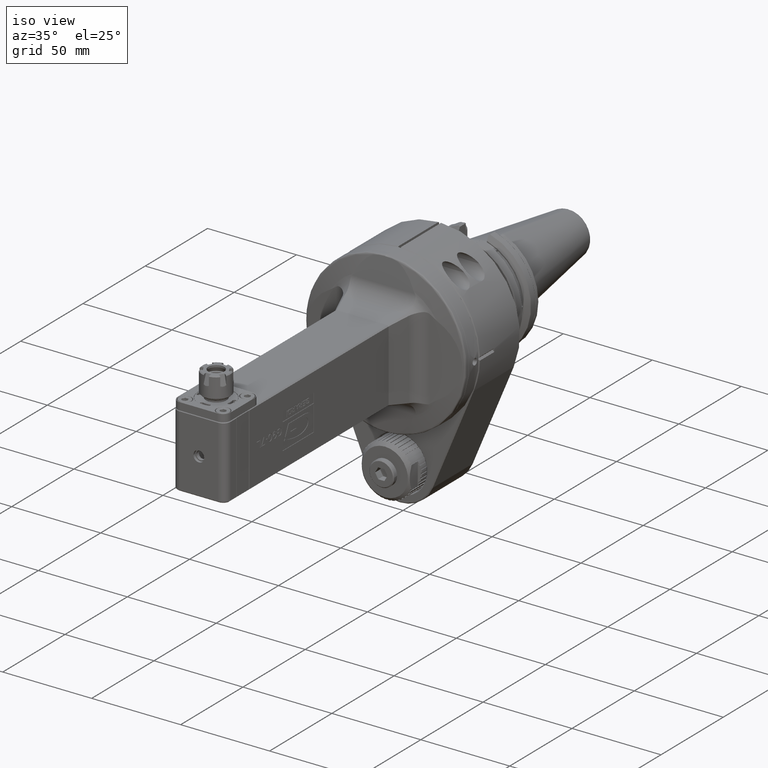
[diagram: clean part render]
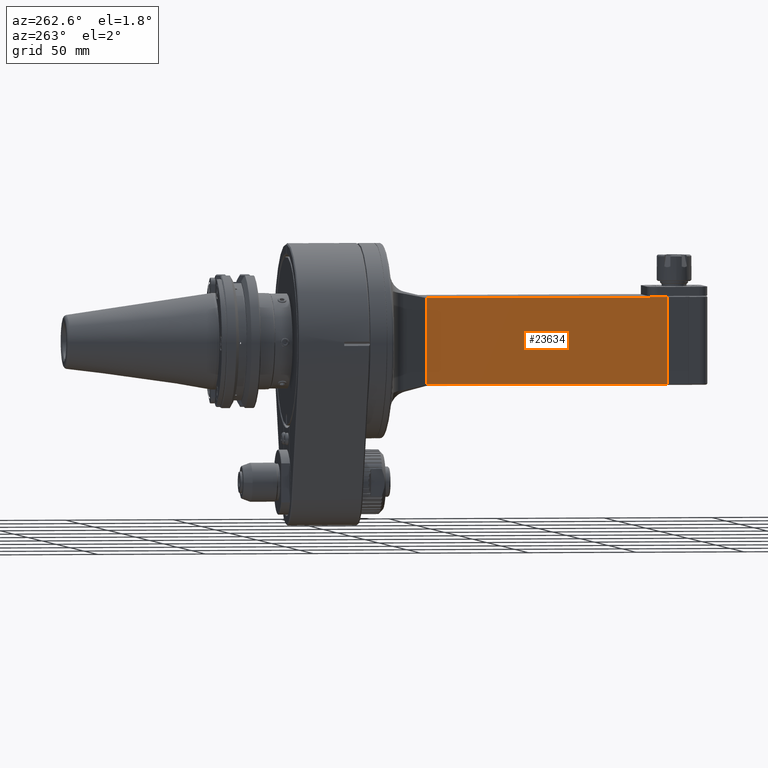
[diagram: tour spotlight — one face highlighted and labeled with its STEP entity id]
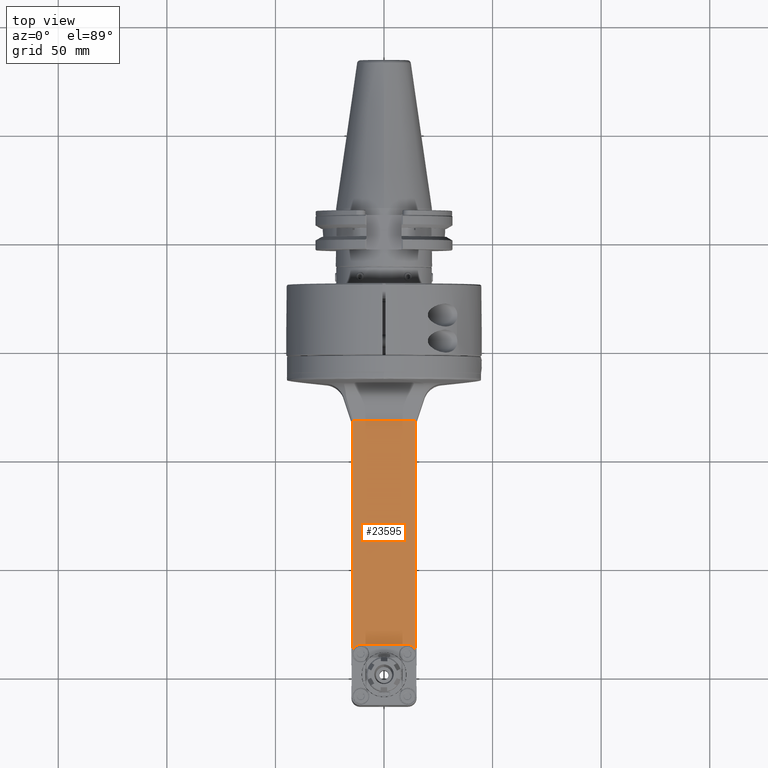
[diagram: tour spotlight — one face highlighted and labeled with its STEP entity id]
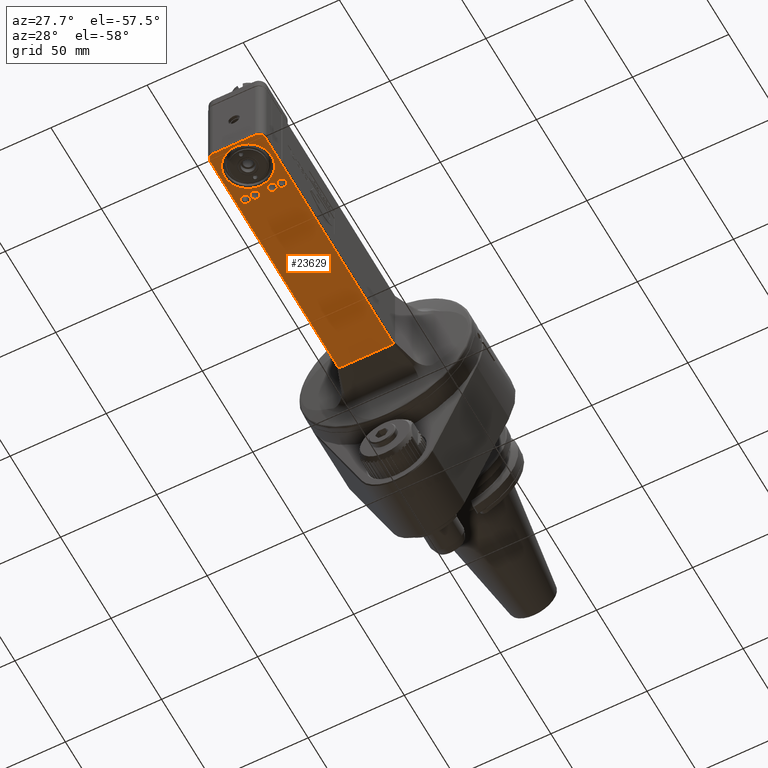
[diagram: tour spotlight — one face highlighted and labeled with its STEP entity id]
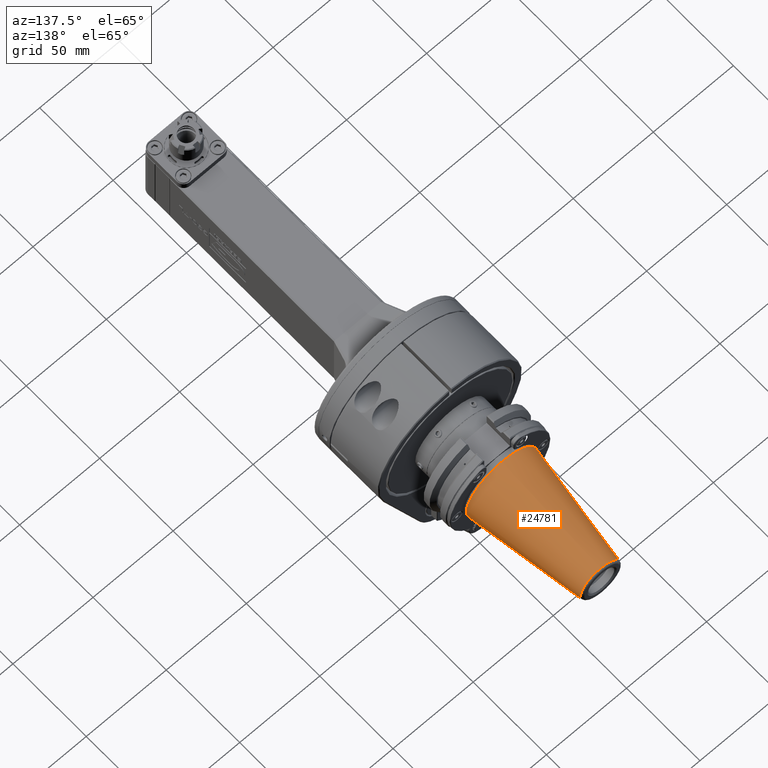
[diagram: tour spotlight — one face highlighted and labeled with its STEP entity id]
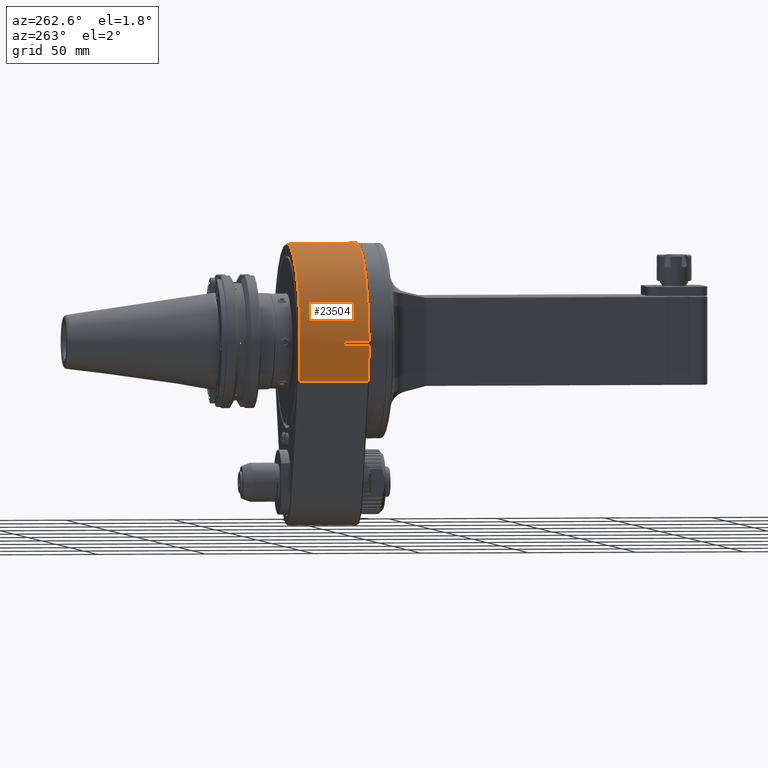
[diagram: tour spotlight — one face highlighted and labeled with its STEP entity id]
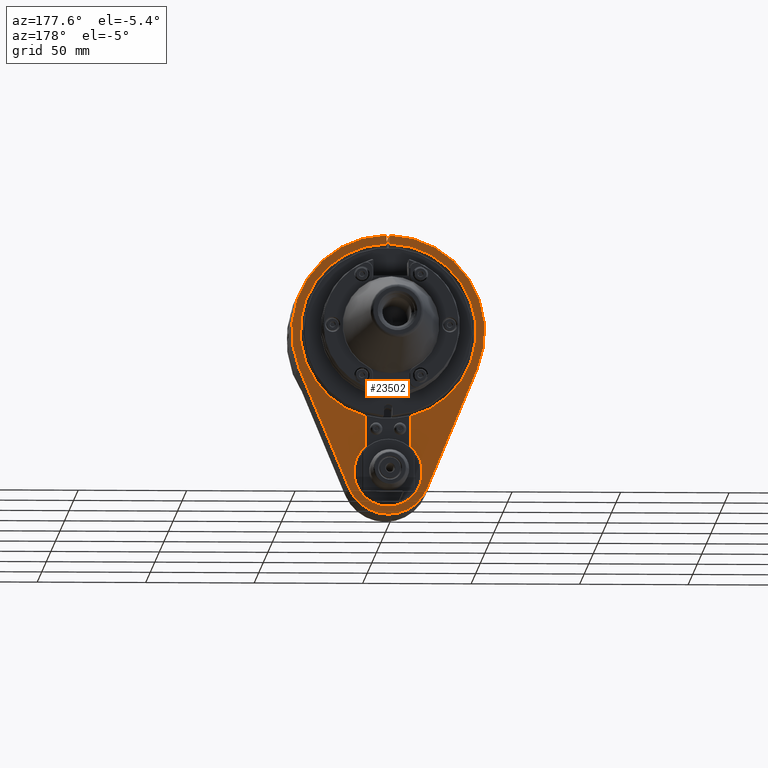
[diagram: tour spotlight — one face highlighted and labeled with its STEP entity id]
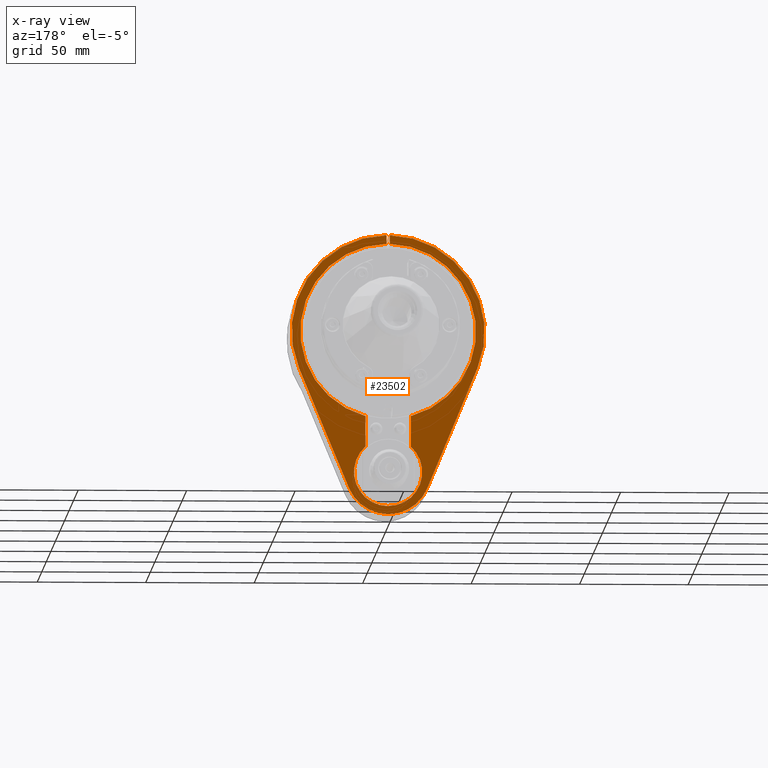
[diagram: x-ray of the same camera — body ghosted, this tour face saturated]
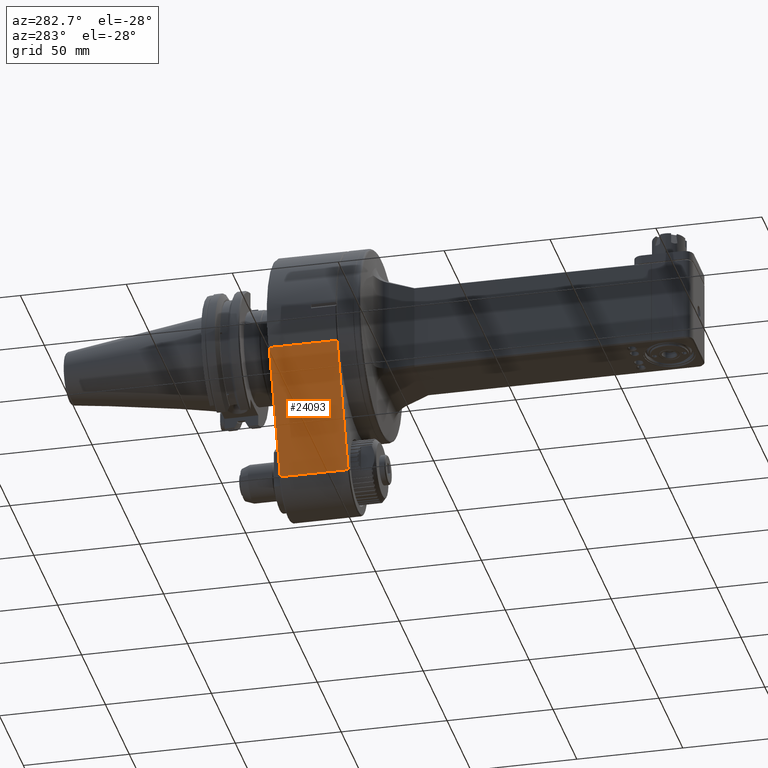
[diagram: tour spotlight — one face highlighted and labeled with its STEP entity id]
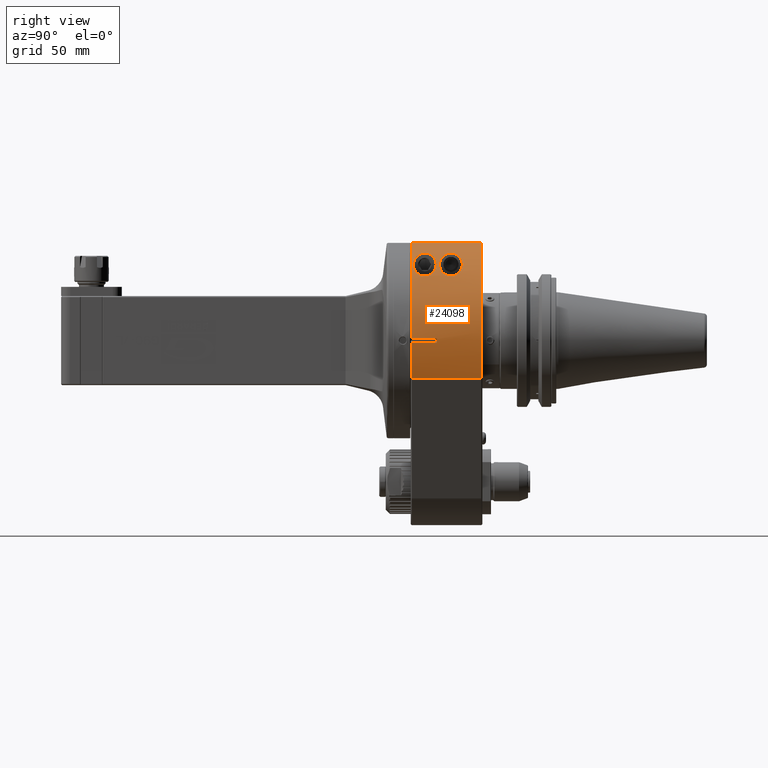
[diagram: tour spotlight — one face highlighted and labeled with its STEP entity id]
A machine part: a face-by-face anatomy tour. The part has 1410 B-rep faces; the first image is the clean iso view, then the 8 largest visible faces are spotlighted one at a time (largest first), each with its STEP entity span.

Face 1 — auxiliary view, entity #23634. In plain terms, the highlighted planar face has unit normal (1, 0, 0).
Definition (entity closure, byte-faithful):
#1033=LINE('',#38626,#3162);
#1038=LINE('',#38649,#3167);
#1039=LINE('',#38651,#3168);
#1040=LINE('',#38652,#3169);
#3162=VECTOR('',#28645,111.8);
#3167=VECTOR('',#28658,40.);
#3168=VECTOR('',#28661,111.8);
#3169=VECTOR('',#28662,40.);
#5694=FACE_OUTER_BOUND('',#7150,.T.);
#7150=EDGE_LOOP('',(#16610,#16611,#16612,#16613));
#9876=VERTEX_POINT('',#37221);
#9886=VERTEX_POINT('',#37592);
#9934=VERTEX_POINT('',#38624);
#9940=VERTEX_POINT('',#38647);
#12479=EDGE_CURVE('',#9886,#9934,#1033,.T.);
#12488=EDGE_CURVE('',#9934,#9940,#1038,.T.);
#12489=EDGE_CURVE('',#9876,#9940,#1039,.T.);
#12490=EDGE_CURVE('',#9886,#9876,#1040,.T.);
#16610=ORIENTED_EDGE('',*,*,#12488,.T.);
#16611=ORIENTED_EDGE('',*,*,#12489,.F.);
#16612=ORIENTED_EDGE('',*,*,#12490,.F.);
#16613=ORIENTED_EDGE('',*,*,#12479,.T.);
#22693=PLANE('',#25392);
#23634=ADVANCED_FACE('',(#5694),#22693,.F.);
#25392=AXIS2_PLACEMENT_3D('',#38650,#28659,#28660);
#28645=DIRECTION('',(0.,-1.,0.));
#28658=DIRECTION('',(0.,0.,1.));
#28659=DIRECTION('center_axis',(1.,0.,0.));
#28660=DIRECTION('ref_axis',(0.,1.,0.));
#28661=DIRECTION('',(0.,-1.,0.));
#28662=DIRECTION('',(0.,0.,1.));
#37221=CARTESIAN_POINT('',(-15.,117.,20.));
#37592=CARTESIAN_POINT('',(-15.,117.,-20.));
#38624=CARTESIAN_POINT('',(-15.,5.2,-20.));
#38626=CARTESIAN_POINT('',(-15.,117.,-20.));
#38647=CARTESIAN_POINT('',(-15.,5.2,20.));
#38649=CARTESIAN_POINT('',(-15.,5.2,-20.));
#38650=CARTESIAN_POINT('Origin',(-15.,-14.,-54.));
#38651=CARTESIAN_POINT('',(-15.,117.,20.));
#38652=CARTESIAN_POINT('',(-15.,117.,-20.));

Face 2 — top view, entity #23595. In plain terms, the highlighted planar face has unit normal (0, 0, 1).
Definition (entity closure, byte-faithful):
#999=LINE('',#36608,#3128);
#1000=LINE('',#36612,#3129);
#1001=LINE('',#36614,#3130);
#1002=LINE('',#36615,#3131);
#3128=VECTOR('',#28439,21.3);
#3129=VECTOR('',#28442,105.0881547575);
#3130=VECTOR('',#28443,28.61817604251);
#3131=VECTOR('',#28444,105.0881547575);
#5655=FACE_OUTER_BOUND('',#7103,.T.);
#7103=EDGE_LOOP('',(#16383,#16384,#16385,#16386,#16387,#16388));
#8725=CIRCLE('',#25299,4.25);
#8727=CIRCLE('',#25302,4.25);
#9839=VERTEX_POINT('',#36599);
#9840=VERTEX_POINT('',#36600);
#9842=VERTEX_POINT('',#36607);
#9843=VERTEX_POINT('',#36609);
#9844=VERTEX_POINT('',#36611);
#9845=VERTEX_POINT('',#36613);
#12347=EDGE_CURVE('',#9839,#9840,#8725,.T.);
#12351=EDGE_CURVE('',#9842,#9840,#999,.T.);
#12352=EDGE_CURVE('',#9842,#9843,#8727,.T.);
#12353=EDGE_CURVE('',#9844,#9843,#1000,.T.);
#12354=EDGE_CURVE('',#9844,#9845,#1001,.T.);
#12355=EDGE_CURVE('',#9845,#9839,#1002,.T.);
#16383=ORIENTED_EDGE('',*,*,#12351,.F.);
#16384=ORIENTED_EDGE('',*,*,#12352,.T.);
#16385=ORIENTED_EDGE('',*,*,#12353,.F.);
#16386=ORIENTED_EDGE('',*,*,#12354,.T.);
#16387=ORIENTED_EDGE('',*,*,#12355,.T.);
#16388=ORIENTED_EDGE('',*,*,#12347,.T.);
#22681=PLANE('',#25301);
#23595=ADVANCED_FACE('',(#5655),#22681,.T.);
#25299=AXIS2_PLACEMENT_3D('',#36601,#28431,#28432);
#25301=AXIS2_PLACEMENT_3D('',#36606,#28437,#28438);
#25302=AXIS2_PLACEMENT_3D('',#36610,#28440,#28441);
#28431=DIRECTION('center_axis',(0.,0.,-1.));
#28432=DIRECTION('ref_axis',(-0.860961887353919,0.508669468834111,0.));
#28437=DIRECTION('center_axis',(0.,0.,1.));
#28438=DIRECTION('ref_axis',(0.,1.,0.));
#28439=DIRECTION('',(-1.,0.,0.));
#28440=DIRECTION('center_axis',(0.,0.,-1.));
#28441=DIRECTION('ref_axis',(0.,1.,0.));
#28442=DIRECTION('',(0.,-1.,0.));
#28443=DIRECTION('',(-1.,0.,0.));
#28444=DIRECTION('',(0.,-1.,0.));
#36599=CARTESIAN_POINT('',(-14.30908802125,11.91184524254,20.5));
#36600=CARTESIAN_POINT('',(-10.65,14.,20.5));
#36601=CARTESIAN_POINT('Origin',(-10.65,9.75,20.5));
#36606=CARTESIAN_POINT('Origin',(54.,-14.,20.5));
#36607=CARTESIAN_POINT('',(10.65,14.,20.5));
#36608=CARTESIAN_POINT('',(10.65,14.,20.5));
#36609=CARTESIAN_POINT('',(14.30908802125,11.91184524254,20.5));
#36610=CARTESIAN_POINT('Origin',(10.65,9.75,20.5));
#36611=CARTESIAN_POINT('',(14.30908802125,117.,20.5));
#36612=CARTESIAN_POINT('',(14.30908802125,117.,20.5));
#36613=CARTESIAN_POINT('',(-14.30908802125,117.,20.5));
#36614=CARTESIAN_POINT('',(14.30908802125,117.,20.5));
#36615=CARTESIAN_POINT('',(-14.30908802125,117.,20.5));

Face 3 — auxiliary view, entity #23629. In plain terms, the highlighted planar face has unit normal (0, 0, 1).
Definition (entity closure, byte-faithful):
#1028=LINE('',#38539,#3157);
#1029=LINE('',#38544,#3158);
#1030=LINE('',#38546,#3159);
#1031=LINE('',#38549,#3160);
#3157=VECTOR('',#28616,28.61817604251);
#3158=VECTOR('',#28621,128.140147564);
#3159=VECTOR('',#28622,10.);
#3160=VECTOR('',#28625,10.);
#5356=FACE_BOUND('',#7141,.T.);
#5357=FACE_BOUND('',#7142,.T.);
#5358=FACE_BOUND('',#7143,.T.);
#5359=FACE_BOUND('',#7144,.T.);
#5360=FACE_BOUND('',#7145,.T.);
#5689=FACE_OUTER_BOUND('',#7140,.T.);
#7140=EDGE_LOOP('',(#16577,#16578,#16579,#16580,#16581,#16582));
#7141=EDGE_LOOP('',(#16583));
#7142=EDGE_LOOP('',(#16584));
#7143=EDGE_LOOP('',(#16585));
#7144=EDGE_LOOP('',(#16586));
#7145=EDGE_LOOP('',(#16587));
#8760=CIRCLE('',#25377,3.5);
#8761=CIRCLE('',#25378,3.5);
#8762=CIRCLE('',#25379,12.19964422275);
#8763=CIRCLE('',#25380,2.25);
#8764=CIRCLE('',#25381,2.25);
#8765=CIRCLE('',#25382,2.25);
#8766=CIRCLE('',#25383,2.25);
#9885=VERTEX_POINT('',#37580);
#9920=VERTEX_POINT('',#38525);
#9921=VERTEX_POINT('',#38541);
#9922=VERTEX_POINT('',#38542);
#9923=VERTEX_POINT('',#38545);
#9924=VERTEX_POINT('',#38547);
#9925=VERTEX_POINT('',#38550);
#9926=VERTEX_POINT('',#38552);
#9927=VERTEX_POINT('',#38554);
#9928=VERTEX_POINT('',#38556);
#9929=VERTEX_POINT('',#38558);
#12463=EDGE_CURVE('',#9885,#9920,#1028,.T.);
#12464=EDGE_CURVE('',#9921,#9922,#8760,.T.);
#12465=EDGE_CURVE('',#9885,#9922,#1029,.T.);
#12466=EDGE_CURVE('',#9920,#9923,#1030,.T.);
#12467=EDGE_CURVE('',#9923,#9924,#8761,.T.);
#12468=EDGE_CURVE('',#9924,#9921,#1031,.T.);
#12469=EDGE_CURVE('',#9925,#9925,#8762,.T.);
#12470=EDGE_CURVE('',#9926,#9926,#8763,.T.);
#12471=EDGE_CURVE('',#9927,#9927,#8764,.T.);
#12472=EDGE_CURVE('',#9928,#9928,#8765,.T.);
#12473=EDGE_CURVE('',#9929,#9929,#8766,.T.);
#16577=ORIENTED_EDGE('',*,*,#12464,.T.);
#16578=ORIENTED_EDGE('',*,*,#12465,.F.);
#16579=ORIENTED_EDGE('',*,*,#12463,.T.);
#16580=ORIENTED_EDGE('',*,*,#12466,.T.);
#16581=ORIENTED_EDGE('',*,*,#12467,.T.);
#16582=ORIENTED_EDGE('',*,*,#12468,.T.);
#16583=ORIENTED_EDGE('',*,*,#12469,.T.);
#16584=ORIENTED_EDGE('',*,*,#12470,.F.);
#16585=ORIENTED_EDGE('',*,*,#12471,.T.);
#16586=ORIENTED_EDGE('',*,*,#12472,.F.);
#16587=ORIENTED_EDGE('',*,*,#12473,.T.);
#22690=PLANE('',#25376);
#23629=ADVANCED_FACE('',(#5689,#5356,#5357,#5358,#5359,#5360),#22690,.F.);
#25376=AXIS2_PLACEMENT_3D('',#38540,#28617,#28618);
#25377=AXIS2_PLACEMENT_3D('',#38543,#28619,#28620);
#25378=AXIS2_PLACEMENT_3D('',#38548,#28623,#28624);
#25379=AXIS2_PLACEMENT_3D('',#38551,#28626,#28627);
#25380=AXIS2_PLACEMENT_3D('',#38553,#28628,#28629);
#25381=AXIS2_PLACEMENT_3D('',#38555,#28630,#28631);
#25382=AXIS2_PLACEMENT_3D('',#38557,#28632,#28633);
#25383=AXIS2_PLACEMENT_3D('',#38559,#28634,#28635);
#28616=DIRECTION('',(1.,0.,0.));
#28617=DIRECTION('center_axis',(0.,0.,1.));
#28618=DIRECTION('ref_axis',(0.,1.,0.));
#28619=DIRECTION('center_axis',(0.,0.,-1.));
#28620=DIRECTION('ref_axis',(0.,-1.,0.));
#28621=DIRECTION('',(0.,-1.,0.));
#28622=DIRECTION('',(0.,-1.,0.));
#28623=DIRECTION('center_axis',(0.,0.,-1.));
#28624=DIRECTION('ref_axis',(0.945545453416625,-0.325490085138009,0.));
#28625=DIRECTION('',(-1.,0.,0.));
#28626=DIRECTION('center_axis',(0.,0.,1.));
#28627=DIRECTION('ref_axis',(-1.,-2.655799077923E-13,0.));
#28628=DIRECTION('center_axis',(0.,0.,-1.));
#28629=DIRECTION('ref_axis',(-1.,0.,0.));
#28630=DIRECTION('center_axis',(0.,0.,1.));
#28631=DIRECTION('ref_axis',(1.,0.,0.));
#28632=DIRECTION('center_axis',(0.,0.,-1.));
#28633=DIRECTION('ref_axis',(-1.,0.,0.));
#28634=DIRECTION('center_axis',(0.,0.,1.));
#28635=DIRECTION('ref_axis',(1.,0.,0.));
#37580=CARTESIAN_POINT('',(-14.30908802125,117.,-20.5));
#38525=CARTESIAN_POINT('',(14.30908802125,117.,-20.5));
#38539=CARTESIAN_POINT('',(-14.30908802125,117.,-20.5));
#38540=CARTESIAN_POINT('Origin',(54.,-14.,-20.5));
#38541=CARTESIAN_POINT('',(-10.9999997873962,-13.5000000000001,-20.5));
#38542=CARTESIAN_POINT('',(-14.30908802125,-11.14014756395,-20.5));
#38543=CARTESIAN_POINT('Origin',(-11.,-10.,-20.5));
#38544=CARTESIAN_POINT('',(-14.30908802125,117.,-20.5));
#38545=CARTESIAN_POINT('',(14.3090902214129,-11.140141902383,-20.4999990206371));
#38546=CARTESIAN_POINT('',(14.3090880212542,181.3,-20.5));
#38547=CARTESIAN_POINT('',(10.9999997936699,-13.5000000003306,-20.4999999996694));
#38548=CARTESIAN_POINT('Origin',(11.,-10.,-20.5));
#38549=CARTESIAN_POINT('',(27.,-13.5,-20.5));
#38550=CARTESIAN_POINT('',(-4.24266943302113E-13,-12.1996442227504,-20.4999999999964));
#38551=CARTESIAN_POINT('Origin',(-4.227729177773E-13,3.240074875066E-12,
-20.5));
#38552=CARTESIAN_POINT('',(11.75,15.5,-20.5));
#38553=CARTESIAN_POINT('Origin',(9.5,15.5,-20.5));
#38554=CARTESIAN_POINT('',(-7.25,15.5,-20.5));
#38555=CARTESIAN_POINT('Origin',(-9.5,15.5,-20.5));
#38556=CARTESIAN_POINT('',(6.75,15.5,-20.5));
#38557=CARTESIAN_POINT('Origin',(4.5,15.5,-20.5));
#38558=CARTESIAN_POINT('',(-2.25,15.5,-20.5));
#38559=CARTESIAN_POINT('Origin',(-4.5,15.5,-20.5));

Face 4 — auxiliary view, entity #24781. In plain terms, the highlighted conical surface has half-angle 8.29 deg.
Definition (entity closure, byte-faithful):
#749=CONICAL_SURFACE('',#27250,17.32914378212,0.14468779499033);
#2876=LINE('',#47819,#5005);
#5005=VECTOR('',#34214,17.32914378212);
#6841=FACE_OUTER_BOUND('',#8406,.T.);
#8406=EDGE_LOOP('',(#22414,#22415,#22416,#22417,#22418,#22419));
#9455=CIRCLE('',#27248,22.225);
#9456=CIRCLE('',#27249,22.225);
#9457=CIRCLE('',#27251,12.43328756423);
#9458=CIRCLE('',#27252,12.43328756423);
#11758=VERTEX_POINT('',#47812);
#11759=VERTEX_POINT('',#47813);
#11760=VERTEX_POINT('',#47818);
#11761=VERTEX_POINT('',#47820);
#15318=EDGE_CURVE('',#11758,#11759,#9455,.T.);
#15319=EDGE_CURVE('',#11759,#11758,#9456,.T.);
#15321=EDGE_CURVE('',#11758,#11760,#2876,.T.);
#15322=EDGE_CURVE('',#11761,#11760,#9457,.T.);
#15323=EDGE_CURVE('',#11760,#11761,#9458,.T.);
#22414=ORIENTED_EDGE('',*,*,#15318,.T.);
#22415=ORIENTED_EDGE('',*,*,#15319,.T.);
#22416=ORIENTED_EDGE('',*,*,#15321,.T.);
#22417=ORIENTED_EDGE('',*,*,#15322,.F.);
#22418=ORIENTED_EDGE('',*,*,#15323,.F.);
#22419=ORIENTED_EDGE('',*,*,#15321,.F.);
#24781=ADVANCED_FACE('',(#6841),#749,.T.);
#27248=AXIS2_PLACEMENT_3D('',#47814,#34207,#34208);
#27249=AXIS2_PLACEMENT_3D('',#47815,#34209,#34210);
#27250=AXIS2_PLACEMENT_3D('',#47817,#34212,#34213);
#27251=AXIS2_PLACEMENT_3D('',#47821,#34215,#34216);
#27252=AXIS2_PLACEMENT_3D('',#47822,#34217,#34218);
#34207=DIRECTION('center_axis',(0.,1.,0.));
#34208=DIRECTION('ref_axis',(0.,0.,1.));
#34209=DIRECTION('center_axis',(0.,1.,0.));
#34210=DIRECTION('ref_axis',(0.,0.,1.));
#34212=DIRECTION('center_axis',(0.,-1.,0.));
#34213=DIRECTION('ref_axis',(0.,0.,-1.));
#34214=DIRECTION('',(1.76573854383491E-17,0.989550968907533,-0.144183493972653));
#34215=DIRECTION('center_axis',(0.,1.,0.));
#34216=DIRECTION('ref_axis',(0.,0.,-1.));
#34217=DIRECTION('center_axis',(0.,1.,0.));
#34218=DIRECTION('ref_axis',(0.,0.,-1.));
#47812=CARTESIAN_POINT('',(0.,215.,22.225));
#47813=CARTESIAN_POINT('',(-2.72177751110499E-15,215.,-22.225));
#47814=CARTESIAN_POINT('Origin',(0.,215.,0.));
#47815=CARTESIAN_POINT('Origin',(0.,215.,0.));
#47817=CARTESIAN_POINT('Origin',(0.,248.6009284458,-3.931079795113E-14));
#47818=CARTESIAN_POINT('',(0.,282.2018568916,12.43328756423));
#47819=CARTESIAN_POINT('',(-2.12220804647375E-15,248.6009284458,17.32914378212));
#47820=CARTESIAN_POINT('',(-0.319239443414268,282.2018568916,12.4291884623496));
#47821=CARTESIAN_POINT('Origin',(0.,282.2018568916,-4.136826142461E-14));
#47822=CARTESIAN_POINT('Origin',(0.,282.2018568916,-4.136826142461E-14));

Face 5 — auxiliary view, entity #23504. In plain terms, the highlighted cylindrical surface (partial cylindrical patch) has radius 45 mm, axis along (0, 1, 0).
Definition (entity closure, byte-faithful):
#889=LINE('',#35864,#3018);
#890=LINE('',#35868,#3019);
#891=LINE('',#35872,#3020);
#892=LINE('',#35875,#3021);
#3018=VECTOR('',#27861,32.0000477155809);
#3019=VECTOR('',#27864,10.);
#3020=VECTOR('',#27867,11.49999180783);
#3021=VECTOR('',#27870,10.);
#5084=CYLINDRICAL_SURFACE('',#25067,45.);
#5564=FACE_OUTER_BOUND('',#6991,.T.);
#6991=EDGE_LOOP('',(#15873,#15874,#15875,#15876,#15877,#15878,#15879,#15880));
#8583=CIRCLE('',#25066,45.);
#8584=CIRCLE('',#25068,45.);
#8585=CIRCLE('',#25069,45.);
#8586=CIRCLE('',#25070,45.);
#9670=VERTEX_POINT('',#35855);
#9671=VERTEX_POINT('',#35856);
#9672=VERTEX_POINT('',#35863);
#9673=VERTEX_POINT('',#35865);
#9674=VERTEX_POINT('',#35867);
#9675=VERTEX_POINT('',#35869);
#9676=VERTEX_POINT('',#35871);
#9677=VERTEX_POINT('',#35873);
#12080=EDGE_CURVE('',#9670,#9671,#8583,.T.);
#12083=EDGE_CURVE('',#9672,#9670,#889,.T.);
#12084=EDGE_CURVE('',#9673,#9672,#8584,.T.);
#12085=EDGE_CURVE('',#9673,#9674,#890,.T.);
#12086=EDGE_CURVE('',#9674,#9675,#8585,.T.);
#12087=EDGE_CURVE('',#9676,#9675,#891,.T.);
#12088=EDGE_CURVE('',#9676,#9677,#8586,.T.);
#12089=EDGE_CURVE('',#9677,#9671,#892,.T.);
#15873=ORIENTED_EDGE('',*,*,#12080,.F.);
#15874=ORIENTED_EDGE('',*,*,#12083,.F.);
#15875=ORIENTED_EDGE('',*,*,#12084,.F.);
#15876=ORIENTED_EDGE('',*,*,#12085,.T.);
#15877=ORIENTED_EDGE('',*,*,#12086,.T.);
#15878=ORIENTED_EDGE('',*,*,#12087,.F.);
#15879=ORIENTED_EDGE('',*,*,#12088,.T.);
#15880=ORIENTED_EDGE('',*,*,#12089,.T.);
#23504=ADVANCED_FACE('',(#5564),#5084,.T.);
#25066=AXIS2_PLACEMENT_3D('',#35857,#27856,#27857);
#25067=AXIS2_PLACEMENT_3D('',#35862,#27859,#27860);
#25068=AXIS2_PLACEMENT_3D('',#35866,#27862,#27863);
#25069=AXIS2_PLACEMENT_3D('',#35870,#27865,#27866);
#25070=AXIS2_PLACEMENT_3D('',#35874,#27868,#27869);
#27856=DIRECTION('center_axis',(0.,1.,0.));
#27857=DIRECTION('ref_axis',(-0.923076923076914,0.,-0.384615384615406));
#27859=DIRECTION('center_axis',(0.,1.,0.));
#27860=DIRECTION('ref_axis',(-0.836644062832862,0.,0.547746941686143));
#27861=DIRECTION('',(3.01341495174691E-6,0.999999999994671,1.25558957236896E-6));
#27862=DIRECTION('center_axis',(0.,-1.,0.));
#27863=DIRECTION('ref_axis',(-0.999758397003229,0.,-0.0219806192254506));
#27864=DIRECTION('',(0.,1.,0.));
#27865=DIRECTION('center_axis',(0.,1.,0.));
#27866=DIRECTION('ref_axis',(-0.999758397003229,0.,-0.0219806192254506));
#27867=DIRECTION('',(-9.03366988345497E-8,0.999999999999996,1.98611078841299E-9));
#27868=DIRECTION('center_axis',(0.,1.,0.));
#27869=DIRECTION('ref_axis',(-0.999758397003229,0.,0.0219806192254606));
#27870=DIRECTION('',(0.,1.,0.));
#35855=CARTESIAN_POINT('',(-41.5384547373929,179.499882417202,-17.3076245446804));
#35856=CARTESIAN_POINT('',(-0.7499916383805,179.4997729971,44.99381797915));
#35857=CARTESIAN_POINT('Origin',(8.361619475092E-6,179.4997729971,6.841323955705E-5));
#35862=CARTESIAN_POINT('Origin',(8.361619475092E-6,147.,6.841323955506E-5));
#35863=CARTESIAN_POINT('',(-41.5383506056541,147.499720379414,-17.3075811886315));
#35864=CARTESIAN_POINT('',(-41.53852340205,147.4999239095,-17.30765318713));
#35865=CARTESIAN_POINT('',(-44.98911950353,147.4993912836,-0.9890594519057));
#35866=CARTESIAN_POINT('Origin',(8.361619475092E-6,147.4993912836,6.841323955509E-5));
#35867=CARTESIAN_POINT('',(-44.98911950353,159.,-0.9890594519057));
#35868=CARTESIAN_POINT('',(-44.9891195035258,147.,-0.989059451906122));
#35869=CARTESIAN_POINT('',(-44.98911950353,159.,0.9891962783849));
#35870=CARTESIAN_POINT('Origin',(8.361619475092E-6,159.,6.84132395558E-5));
#35871=CARTESIAN_POINT('',(-44.9891190277714,147.500027444128,0.989196030903839));
#35872=CARTESIAN_POINT('',(-44.98911846465,147.5000081922,0.9891962555446));
#35873=CARTESIAN_POINT('',(-0.749991523165556,147.500027675965,44.9938179734379));
#35874=CARTESIAN_POINT('Origin',(8.361619559025E-6,147.5000276939,6.841323894402E-5));
#35875=CARTESIAN_POINT('',(-0.7499916383805,147.,44.9938179791515));

Face 6 — auxiliary view, entity #23502. An x-ray twin of the same camera follows (body ghosted, this face saturated) — the face is partly hidden behind the body. In plain terms, the highlighted planar face has unit normal (0, 1, 0).
Definition (entity closure, byte-faithful):
#869=LINE('',#35739,#2998);
#883=LINE('',#35837,#3012);
#884=LINE('',#35842,#3013);
#885=LINE('',#35846,#3014);
#886=LINE('',#35850,#3015);
#887=LINE('',#35853,#3016);
#2998=VECTOR('',#27783,10.);
#3012=VECTOR('',#27839,10.);
#3013=VECTOR('',#27844,10.);
#3014=VECTOR('',#27847,10.);
#3015=VECTOR('',#27850,10.);
#3016=VECTOR('',#27853,10.);
#5562=FACE_OUTER_BOUND('',#6989,.T.);
#6989=EDGE_LOOP('',(#15857,#15858,#15859,#15860,#15861,#15862,#15863,#15864,
#15865,#15866,#15867,#15868));
#8565=CIRCLE('',#25037,15.74995401113);
#8567=CIRCLE('',#25041,40.49996614719);
#8579=CIRCLE('',#25061,44.49977552051);
#8580=CIRCLE('',#25062,40.49996513527);
#8581=CIRCLE('',#25063,44.49977273927);
#8582=CIRCLE('',#25064,19.49970659949);
#9636=VERTEX_POINT('',#35728);
#9637=VERTEX_POINT('',#35732);
#9638=VERTEX_POINT('',#35738);
#9640=VERTEX_POINT('',#35746);
#9662=VERTEX_POINT('',#35833);
#9663=VERTEX_POINT('',#35839);
#9664=VERTEX_POINT('',#35840);
#9665=VERTEX_POINT('',#35843);
#9666=VERTEX_POINT('',#35845);
#9667=VERTEX_POINT('',#35847);
#9668=VERTEX_POINT('',#35849);
#9669=VERTEX_POINT('',#35851);
#12034=EDGE_CURVE('',#9636,#9637,#8565,.T.);
#12036=EDGE_CURVE('',#9638,#9637,#869,.T.);
#12039=EDGE_CURVE('',#9638,#9640,#8567,.T.);
#12071=EDGE_CURVE('',#9636,#9662,#883,.T.);
#12072=EDGE_CURVE('',#9663,#9664,#8579,.T.);
#12073=EDGE_CURVE('',#9664,#9640,#884,.T.);
#12074=EDGE_CURVE('',#9665,#9662,#8580,.T.);
#12075=EDGE_CURVE('',#9666,#9665,#885,.T.);
#12076=EDGE_CURVE('',#9666,#9667,#8581,.T.);
#12077=EDGE_CURVE('',#9667,#9668,#886,.T.);
#12078=EDGE_CURVE('',#9668,#9669,#8582,.T.);
#12079=EDGE_CURVE('',#9669,#9663,#887,.T.);
#15857=ORIENTED_EDGE('',*,*,#12072,.T.);
#15858=ORIENTED_EDGE('',*,*,#12073,.T.);
#15859=ORIENTED_EDGE('',*,*,#12039,.F.);
#15860=ORIENTED_EDGE('',*,*,#12036,.T.);
#15861=ORIENTED_EDGE('',*,*,#12034,.F.);
#15862=ORIENTED_EDGE('',*,*,#12071,.T.);
#15863=ORIENTED_EDGE('',*,*,#12074,.F.);
#15864=ORIENTED_EDGE('',*,*,#12075,.F.);
#15865=ORIENTED_EDGE('',*,*,#12076,.T.);
#15866=ORIENTED_EDGE('',*,*,#12077,.T.);
#15867=ORIENTED_EDGE('',*,*,#12078,.T.);
#15868=ORIENTED_EDGE('',*,*,#12079,.T.);
#22638=PLANE('',#25060);
#23502=ADVANCED_FACE('',(#5562),#22638,.T.);
#25037=AXIS2_PLACEMENT_3D('',#35733,#27779,#27780);
#25041=AXIS2_PLACEMENT_3D('',#35747,#27788,#27789);
#25060=AXIS2_PLACEMENT_3D('',#35838,#27840,#27841);
#25061=AXIS2_PLACEMENT_3D('',#35841,#27842,#27843);
#25062=AXIS2_PLACEMENT_3D('',#35844,#27845,#27846);
#25063=AXIS2_PLACEMENT_3D('',#35848,#27848,#27849);
#25064=AXIS2_PLACEMENT_3D('',#35852,#27851,#27852);
#27779=DIRECTION('center_axis',(0.,1.,0.));
#27780=DIRECTION('ref_axis',(0.666667724959125,0.,0.745355045933027));
#27783=DIRECTION('',(0.,0.,-1.));
#27788=DIRECTION('center_axis',(0.,1.,0.));
#27789=DIRECTION('ref_axis',(-0.259259369741199,0.,-0.965807734076196));
#27839=DIRECTION('',(0.,0.,1.));
#27840=DIRECTION('center_axis',(0.,1.,0.));
#27841=DIRECTION('ref_axis',(1.,0.,0.));
#27842=DIRECTION('center_axis',(0.,1.,0.));
#27843=DIRECTION('ref_axis',(-0.923076923076914,0.,-0.384615384615406));
#27844=DIRECTION('',(0.,0.,-1.));
#27845=DIRECTION('center_axis',(0.,1.,0.));
#27846=DIRECTION('ref_axis',(0.0185185185185104,0.,0.999828517532822));
#27847=DIRECTION('',(0.,0.,-1.));
#27848=DIRECTION('center_axis',(0.,1.,0.));
#27849=DIRECTION('ref_axis',(0.0168539325842897,0.,0.999857962390881));
#27850=DIRECTION('',(-0.384615384615375,0.,-0.923076923076927));
#27851=DIRECTION('center_axis',(0.,1.,0.));
#27852=DIRECTION('ref_axis',(0.923076923076914,0.,-0.384615384615406));
#27853=DIRECTION('',(-0.384615384615375,0.,0.923076923076927));
#35728=CARTESIAN_POINT('',(10.5000083611493,179.999999999997,-53.2606364044397));
#35732=CARTESIAN_POINT('',(-10.4999916379093,179.999999999997,-53.2606364044389));
#35733=CARTESIAN_POINT('Origin',(8.361619552363E-6,180.,-64.99993158676));
#35738=CARTESIAN_POINT('',(-10.499991637553,179.999999999599,-39.1151109661703));
#35739=CARTESIAN_POINT('',(-10.49999163838,180.,-23.0539952173602));
#35746=CARTESIAN_POINT('',(-0.749991481109722,180.000000008269,40.4930895393811));
#35747=CARTESIAN_POINT('Origin',(8.36161972467E-6,180.,6.841323927286E-5));
#35833=CARTESIAN_POINT('',(10.5000083607713,179.999999999589,-39.115109918403));
#35837=CARTESIAN_POINT('',(10.50000836162,180.,-23.0539952173602));
#35838=CARTESIAN_POINT('Origin',(8.361619475092E-6,180.,6.841323955708E-5));
#35839=CARTESIAN_POINT('',(-41.0768159889722,180.000030395574,-17.115275123));
#35840=CARTESIAN_POINT('',(-0.749991637875432,179.999999996847,44.4935232339925));
#35841=CARTESIAN_POINT('Origin',(8.36161927614E-6,180.,6.841323964323E-5));
#35842=CARTESIAN_POINT('',(-0.7499916383805,180.,23.5015675499298));
#35843=CARTESIAN_POINT('',(0.750008199647661,180.000000008518,40.4930885280211));
#35844=CARTESIAN_POINT('Origin',(8.361619654504E-6,180.,6.841323942918E-5));
#35845=CARTESIAN_POINT('',(0.750008361108472,179.999999996806,44.4935204523977));
#35846=CARTESIAN_POINT('',(0.7500083616195,180.,11.6545675499298));
#35847=CARTESIAN_POINT('',(41.0768593604323,179.999953809172,-17.1152862241785));
#35848=CARTESIAN_POINT('Origin',(8.361618384409E-6,180.,6.84132397285E-5));
#35849=CARTESIAN_POINT('',(17.9998816222649,180.000037648727,-72.4998786800966));
#35850=CARTESIAN_POINT('',(35.3077006693121,180.,-30.9614700483005));
#35851=CARTESIAN_POINT('',(-17.9998995641318,179.999939865491,-72.4998931357436));
#35852=CARTESIAN_POINT('Origin',(8.361619670491E-6,180.,-64.99993158676));
#35853=CARTESIAN_POINT('',(-35.3076839460722,180.,-30.9614700483004));

Face 7 — auxiliary view, entity #24093. In plain terms, the highlighted planar face has unit normal (-0.9231, 0, -0.3846).
Definition (entity closure, byte-faithful):
#889=LINE('',#35864,#3018);
#1953=LINE('',#42012,#4082);
#1954=LINE('',#42015,#4083);
#1955=LINE('',#42016,#4084);
#3018=VECTOR('',#27861,32.0000477155809);
#4082=VECTOR('',#30743,10.);
#4083=VECTOR('',#30746,31.99992477141);
#4084=VECTOR('',#30747,10.);
#6153=FACE_OUTER_BOUND('',#7646,.T.);
#7646=EDGE_LOOP('',(#19013,#19014,#19015,#19016));
#9670=VERTEX_POINT('',#35855);
#9672=VERTEX_POINT('',#35863);
#10689=VERTEX_POINT('',#42008);
#10690=VERTEX_POINT('',#42014);
#12083=EDGE_CURVE('',#9672,#9670,#889,.T.);
#13644=EDGE_CURVE('',#10689,#9670,#1953,.T.);
#13645=EDGE_CURVE('',#10690,#10689,#1954,.T.);
#13646=EDGE_CURVE('',#9672,#10690,#1955,.T.);
#19013=ORIENTED_EDGE('',*,*,#13644,.F.);
#19014=ORIENTED_EDGE('',*,*,#13645,.F.);
#19015=ORIENTED_EDGE('',*,*,#13646,.F.);
#19016=ORIENTED_EDGE('',*,*,#12083,.T.);
#23027=PLANE('',#25977);
#24093=ADVANCED_FACE('',(#6153),#23027,.T.);
#25977=AXIS2_PLACEMENT_3D('',#42013,#30744,#30745);
#27861=DIRECTION('',(3.01341495174691E-6,0.999999999994671,1.25558957236896E-6));
#30743=DIRECTION('',(-0.384615384615406,-3.39139971075705E-14,0.923076923076914));
#30744=DIRECTION('center_axis',(-0.923076923076914,0.,-0.384615384615406));
#30745=DIRECTION('ref_axis',(-0.384615384615406,0.,0.923076923076914));
#30746=DIRECTION('',(0.,1.,0.));
#30747=DIRECTION('',(0.384615384615406,-3.39139971075705E-14,-0.923076923076914));
#35855=CARTESIAN_POINT('',(-41.5384547373929,179.499882417202,-17.3076245446804));
#35863=CARTESIAN_POINT('',(-41.5383506056541,147.499720379414,-17.3075811886315));
#35864=CARTESIAN_POINT('',(-41.53852340205,147.4999239095,-17.30765318713));
#42008=CARTESIAN_POINT('',(-18.4614894691302,179.499906428888,-72.6922222828442));
#42012=CARTESIAN_POINT('',(-24.2307608691508,179.499999999998,-58.8460854329169));
#42013=CARTESIAN_POINT('Origin',(-18.46153009992,147.,-72.69223927907));
#42014=CARTESIAN_POINT('',(-18.4615321683794,147.500155873633,-72.6922401409281));
#42015=CARTESIAN_POINT('',(-18.46149540007,147.5000376143,-72.69222475407));
#42016=CARTESIAN_POINT('',(-24.2307608691506,147.500000000002,-58.8460854329174));

Face 8 — right view, entity #24098. In plain terms, the highlighted cylindrical surface (partial cylindrical patch) has radius 45 mm, axis along (0, 1, 0).
Definition (entity closure, byte-faithful):
#406=B_SPLINE_CURVE_WITH_KNOTS('',3,(#42045,#42046,#42047,#42048,#42049,
#42050,#42051,#42052,#42053,#42054,#42055,#42056,#42057,#42058,#42059,#42060,
#42061,#42062,#42063,#42064,#42065,#42066,#42067),.UNSPECIFIED.,.F.,.F.,
(4,2,2,2,2,3,2,2,2,2,4),(-1.14650177911684,-0.782118711859815,-0.417735644602792,
-0.208867822301396,-0.104433911150698,0.,0.104433911150698,0.208867822301396,
0.417735644602792,0.782118711859815,1.14650177911684),.UNSPECIFIED.);
#407=B_SPLINE_CURVE_WITH_KNOTS('',3,(#42068,#42069,#42070,#42071,#42072,
#42073,#42074,#42075,#42076,#42077,#42078,#42079,#42080,#42081,#42082,#42083,
#42084,#42085),.UNSPECIFIED.,.F.,.F.,(4,2,2,2,2,2,2,2,4),(1.14650177911684,
1.44559759523358,1.74469341135032,1.93696179832481,2.1292301852993,2.32149857227379,
2.51376695924828,2.81286277536502,3.11195859148176),.UNSPECIFIED.);
#408=B_SPLINE_CURVE_WITH_KNOTS('',3,(#42087,#42088,#42089,#42090,#42091,
#42092,#42093,#42094,#42095,#42096,#42097,#42098,#42099,#42100,#42101,#42102,
#42103,#42104,#42105,#42106,#42107,#42108,#42109,#42110,#42111,#42112,#42113,
#42114,#42115,#42116,#42117,#42118,#42119,#42120,#42121,#42122,#42123,#42124),
 .UNSPECIFIED.,.T.,.F.,(4,2,2,2,2,2,2,2,2,2,2,2,2,2,2,2,2,2,4),(-4.25846037059859,
-4.1540264594479,-4.0495925482972,-3.8407247259958,-3.47634165873878,-3.11195859148176,
-2.81286277536502,-2.51376695924827,-2.32149857227379,-2.1292301852993,
-1.93696179832481,-1.74469341135032,-1.44559759523358,-1.14650177911684,
-0.782118711859814,-0.417735644602791,-0.208867822301396,-0.104433911150698,
0.),.UNSPECIFIED.);
#917=LINE('',#35966,#3046);
#1961=LINE('',#42038,#4090);
#1962=LINE('',#42041,#4091);
#1963=LINE('',#42042,#4092);
#3046=VECTOR('',#27955,10.);
#4090=VECTOR('',#30769,10.);
#4091=VECTOR('',#30772,10.);
#4092=VECTOR('',#30773,32.0000483181088);
#5155=CYLINDRICAL_SURFACE('',#25984,45.);
#5398=FACE_BOUND('',#7652,.T.);
#5399=FACE_BOUND('',#7653,.T.);
#6158=FACE_OUTER_BOUND('',#7651,.T.);
#7651=EDGE_LOOP('',(#19033,#19034,#19035,#19036,#19037,#19038,#19039,#19040));
#7652=EDGE_LOOP('',(#19041,#19042));
#7653=EDGE_LOOP('',(#19043));
#8885=CIRCLE('',#25972,45.);
#8888=CIRCLE('',#25983,45.);
#8889=CIRCLE('',#25985,45.);
#8890=CIRCLE('',#25986,45.);
#9712=VERTEX_POINT('',#35963);
#9713=VERTEX_POINT('',#35965);
#10687=VERTEX_POINT('',#42000);
#10692=VERTEX_POINT('',#42025);
#10693=VERTEX_POINT('',#42029);
#10694=VERTEX_POINT('',#42035);
#10695=VERTEX_POINT('',#42037);
#10696=VERTEX_POINT('',#42039);
#10697=VERTEX_POINT('',#42043);
#10698=VERTEX_POINT('',#42044);
#10699=VERTEX_POINT('',#42086);
#12135=EDGE_CURVE('',#9712,#9713,#917,.T.);
#13638=EDGE_CURVE('',#9713,#10687,#8885,.T.);
#13653=EDGE_CURVE('',#10692,#10693,#8888,.T.);
#13655=EDGE_CURVE('',#9712,#10694,#8889,.T.);
#13656=EDGE_CURVE('',#10695,#10694,#1961,.T.);
#13657=EDGE_CURVE('',#10696,#10695,#8890,.T.);
#13658=EDGE_CURVE('',#10696,#10693,#1962,.T.);
#13659=EDGE_CURVE('',#10692,#10687,#1963,.T.);
#13660=EDGE_CURVE('',#10697,#10698,#406,.T.);
#13661=EDGE_CURVE('',#10698,#10697,#407,.T.);
#13662=EDGE_CURVE('',#10699,#10699,#408,.T.);
#19033=ORIENTED_EDGE('',*,*,#13638,.F.);
#19034=ORIENTED_EDGE('',*,*,#12135,.F.);
#19035=ORIENTED_EDGE('',*,*,#13655,.T.);
#19036=ORIENTED_EDGE('',*,*,#13656,.F.);
#19037=ORIENTED_EDGE('',*,*,#13657,.F.);
#19038=ORIENTED_EDGE('',*,*,#13658,.T.);
#19039=ORIENTED_EDGE('',*,*,#13653,.F.);
#19040=ORIENTED_EDGE('',*,*,#13659,.T.);
#19041=ORIENTED_EDGE('',*,*,#13660,.T.);
#19042=ORIENTED_EDGE('',*,*,#13661,.T.);
#19043=ORIENTED_EDGE('',*,*,#13662,.T.);
#24098=ADVANCED_FACE('',(#6158,#5398,#5399),#5155,.T.);
#25972=AXIS2_PLACEMENT_3D('',#42001,#30729,#30730);
#25983=AXIS2_PLACEMENT_3D('',#42030,#30763,#30764);
#25984=AXIS2_PLACEMENT_3D('',#42034,#30765,#30766);
#25985=AXIS2_PLACEMENT_3D('',#42036,#30767,#30768);
#25986=AXIS2_PLACEMENT_3D('',#42040,#30770,#30771);
#27955=DIRECTION('',(0.,1.,0.));
#30729=DIRECTION('center_axis',(0.,1.,0.));
#30730=DIRECTION('ref_axis',(0.0166666666666702,0.,0.99986110146471));
#30763=DIRECTION('center_axis',(0.,-1.,0.));
#30764=DIRECTION('ref_axis',(0.923076923076914,0.,-0.384615384615406));
#30765=DIRECTION('center_axis',(0.,1.,0.));
#30766=DIRECTION('ref_axis',(1.,0.,0.));
#30767=DIRECTION('center_axis',(0.,1.,0.));
#30768=DIRECTION('ref_axis',(0.0166666666666302,0.,0.99986110146471));
#30769=DIRECTION('',(0.,-1.,0.));
#30770=DIRECTION('center_axis',(0.,-1.,0.));
#30771=DIRECTION('ref_axis',(0.999758397003229,0.,-0.0219806192254506));
#30772=DIRECTION('',(0.,-1.,0.));
#30773=DIRECTION('',(-3.05107735213611E-6,0.999999999994537,1.27128224226905E-6));
#35963=CARTESIAN_POINT('',(0.750008126399626,147.500048871434,44.9938179739653));
#35965=CARTESIAN_POINT('',(0.7500083616195,179.4997701846,44.99381797915));
#35966=CARTESIAN_POINT('',(0.7500083616195,147.,44.9938179791515));
#42000=CARTESIAN_POINT('',(41.5384388384042,179.499928540718,-17.3076109934829));
#42001=CARTESIAN_POINT('Origin',(8.361619475092E-6,179.4997701846,6.841323955705E-5));
#42025=CARTESIAN_POINT('',(41.5382782036942,147.49968597199,-17.3075440671294));
#42029=CARTESIAN_POINT('',(44.98913622676,147.4993836519,-0.9890594519057));
#42030=CARTESIAN_POINT('Origin',(8.361619475092E-6,147.4993836519,6.841323955509E-5));
#42034=CARTESIAN_POINT('Origin',(8.361619475092E-6,147.,6.841323955506E-5));
#42035=CARTESIAN_POINT('',(44.989136226179,147.500048891042,0.989196277058329));
#42036=CARTESIAN_POINT('Origin',(8.361620999206E-6,147.5000488924,6.841323971363E-5));
#42037=CARTESIAN_POINT('',(44.98913622676,159.,0.9891962783849));
#42038=CARTESIAN_POINT('',(44.9891362267648,147.,0.989196278384772));
#42039=CARTESIAN_POINT('',(44.98913622676,159.,-0.9890594519057));
#42040=CARTESIAN_POINT('Origin',(8.361619475092E-6,159.,6.84132395558E-5));
#42041=CARTESIAN_POINT('',(44.9891362267648,147.,-0.989059451905101));
#42042=CARTESIAN_POINT('',(41.53854100259,147.4999229556,-17.30765356189));
#42043=CARTESIAN_POINT('',(28.28427960908,148.25,35.00006841324));
#42044=CARTESIAN_POINT('',(28.2842796090808,158.75,35.00006841324));
#42045=CARTESIAN_POINT('Ctrl Pts',(28.2842796090808,148.25,35.00006841324));
#42046=CARTESIAN_POINT('Ctrl Pts',(27.3395827680441,148.25,35.7634987474829));
#42047=CARTESIAN_POINT('Ctrl Pts',(26.2844616461091,148.422019173305,36.5477185308663));
#42048=CARTESIAN_POINT('Ctrl Pts',(24.1877970615033,149.098493447282,37.9678716530934));
#42049=CARTESIAN_POINT('Ctrl Pts',(23.1451663825711,149.596433418145,38.6052952026912));
#42050=CARTESIAN_POINT('Ctrl Pts',(21.7360363045907,150.60795048148,39.4068443363611));
#42051=CARTESIAN_POINT('Ctrl Pts',(21.2052062939446,151.074573380795,39.6932199748555));
#42052=CARTESIAN_POINT('Ctrl Pts',(20.6004808975432,151.898476058583,40.0084701099621));
#42053=CARTESIAN_POINT('Ctrl Pts',(20.4308871566001,152.193559948394,40.0949203058429));
#42054=CARTESIAN_POINT('Ctrl Pts',(20.1921920283605,152.820281950207,40.2156566669373));
#42055=CARTESIAN_POINT('Ctrl Pts',(20.1230672742193,153.151886962831,40.25006841324));
#42056=CARTESIAN_POINT('Ctrl Pts',(20.1230672742193,153.5,40.25006841324));
#42057=CARTESIAN_POINT('Ctrl Pts',(20.1230672742193,153.848113037169,40.25006841324));
#42058=CARTESIAN_POINT('Ctrl Pts',(20.1921920283605,154.179718049793,40.2156566669373));
#42059=CARTESIAN_POINT('Ctrl Pts',(20.4308871566001,154.806440051607,40.0949203058429));
#42060=CARTESIAN_POINT('Ctrl Pts',(20.6004808975432,155.101523941417,40.0084701099621));
#42061=CARTESIAN_POINT('Ctrl Pts',(21.2052062939447,155.925426619205,39.6932199748555));
#42062=CARTESIAN_POINT('Ctrl Pts',(21.7360363045907,156.39204951852,39.4068443363611));
#42063=CARTESIAN_POINT('Ctrl Pts',(23.1451663825711,157.403566581855,38.6052952026912));
#42064=CARTESIAN_POINT('Ctrl Pts',(24.1877970615033,157.901506552718,37.9678716530934));
#42065=CARTESIAN_POINT('Ctrl Pts',(26.2844616461091,158.577980826695,36.5477185308663));
#42066=CARTESIAN_POINT('Ctrl Pts',(27.3395827680441,158.75,35.7634987474829));
#42067=CARTESIAN_POINT('Ctrl Pts',(28.2842796090808,158.75,35.00006841324));
#42068=CARTESIAN_POINT('Ctrl Pts',(28.2842796090808,158.75,35.00006841324));
#42069=CARTESIAN_POINT('Ctrl Pts',(29.0597132064205,158.75,34.3734234360528));
#42070=CARTESIAN_POINT('Ctrl Pts',(29.8806869933761,158.632740020035,33.6629767770559));
#42071=CARTESIAN_POINT('Ctrl Pts',(31.3794422677882,158.047748731785,32.2704491516722));
#42072=CARTESIAN_POINT('Ctrl Pts',(32.0579213793612,157.579714012131,31.5892467304973));
#42073=CARTESIAN_POINT('Ctrl Pts',(32.9252219305591,156.530347538609,30.6786025243795));
#42074=CARTESIAN_POINT('Ctrl Pts',(33.2348152966279,156.002448271114,30.3405619649549));
#42075=CARTESIAN_POINT('Ctrl Pts',(33.6535806051356,154.808034838467,29.8753928072277));
#42076=CARTESIAN_POINT('Ctrl Pts',(33.7629688360798,154.140894623248,29.75006841324));
#42077=CARTESIAN_POINT('Ctrl Pts',(33.7629688360798,152.859105376752,29.75006841324));
#42078=CARTESIAN_POINT('Ctrl Pts',(33.6535806051356,152.191965161533,29.8753928072277));
#42079=CARTESIAN_POINT('Ctrl Pts',(33.2348152966279,150.997551728887,30.3405619649549));
#42080=CARTESIAN_POINT('Ctrl Pts',(32.9252219305591,150.469652461391,30.6786025243795));
#42081=CARTESIAN_POINT('Ctrl Pts',(32.0579213793612,149.42028598787,31.5892467304973));
#42082=CARTESIAN_POINT('Ctrl Pts',(31.3794422677882,148.952251268215,32.2704491516722));
#42083=CARTESIAN_POINT('Ctrl Pts',(29.8806869933761,148.367259979965,33.6629767770559));
#42084=CARTESIAN_POINT('Ctrl Pts',(29.0597132064205,148.25,34.3734234360528));
#42085=CARTESIAN_POINT('Ctrl Pts',(28.2842796090808,148.25,35.00006841324));
#42086=CARTESIAN_POINT('',(28.28427960908,170.75,35.00006841324));
#42087=CARTESIAN_POINT('Ctrl Pts',(20.1230672742193,165.5,40.25006841324));
#42088=CARTESIAN_POINT('Ctrl Pts',(20.1230672742193,165.848113037169,40.25006841324));
#42089=CARTESIAN_POINT('Ctrl Pts',(20.1921920283605,166.179718049793,40.2156566669373));
#42090=CARTESIAN_POINT('Ctrl Pts',(20.4308871566001,166.806440051607,40.0949203058429));
#42091=CARTESIAN_POINT('Ctrl Pts',(20.6004808975432,167.101523941417,40.0084701099621));
#42092=CARTESIAN_POINT('Ctrl Pts',(21.2052062939447,167.925426619205,39.6932199748555));
#42093=CARTESIAN_POINT('Ctrl Pts',(21.7360363045907,168.39204951852,39.4068443363611));
#42094=CARTESIAN_POINT('Ctrl Pts',(23.1451663825711,169.403566581855,38.6052952026912));
#42095=CARTESIAN_POINT('Ctrl Pts',(24.1877970615033,169.901506552718,37.9678716530934));
#42096=CARTESIAN_POINT('Ctrl Pts',(26.2844616461091,170.577980826695,36.5477185308663));
#42097=CARTESIAN_POINT('Ctrl Pts',(27.3395827680441,170.75,35.7634987474829));
#42098=CARTESIAN_POINT('Ctrl Pts',(29.0597132064205,170.75,34.3734234360528));
#42099=CARTESIAN_POINT('Ctrl Pts',(29.8806869933761,170.632740020035,33.6629767770559));
#42100=CARTESIAN_POINT('Ctrl Pts',(31.3794422677882,170.047748731785,32.2704491516722));
#42101=CARTESIAN_POINT('Ctrl Pts',(32.0579213793612,169.579714012131,31.5892467304973));
#42102=CARTESIAN_POINT('Ctrl Pts',(32.9252219305591,168.530347538609,30.6786025243795));
#42103=CARTESIAN_POINT('Ctrl Pts',(33.2348152966279,168.002448271114,30.3405619649549));
#42104=CARTESIAN_POINT('Ctrl Pts',(33.6535806051356,166.808034838467,29.8753928072277));
#42105=CARTESIAN_POINT('Ctrl Pts',(33.7629688360798,166.140894623248,29.75006841324));
#42106=CARTESIAN_POINT('Ctrl Pts',(33.7629688360798,164.859105376752,29.75006841324));
#42107=CARTESIAN_POINT('Ctrl Pts',(33.6535806051356,164.191965161533,29.8753928072277));
#42108=CARTESIAN_POINT('Ctrl Pts',(33.2348152966279,162.997551728887,30.3405619649549));
#42109=CARTESIAN_POINT('Ctrl Pts',(32.9252219305591,162.469652461391,30.6786025243795));
#42110=CARTESIAN_POINT('Ctrl Pts',(32.0579213793612,161.42028598787,31.5892467304973));
#42111=CARTESIAN_POINT('Ctrl Pts',(31.3794422677882,160.952251268215,32.2704491516722));
#42112=CARTESIAN_POINT('Ctrl Pts',(29.8806869933761,160.367259979965,33.6629767770559));
#42113=CARTESIAN_POINT('Ctrl Pts',(29.0597132064205,160.25,34.3734234360528));
#42114=CARTESIAN_POINT('Ctrl Pts',(27.3395827680441,160.25,35.7634987474829));
#42115=CARTESIAN_POINT('Ctrl Pts',(26.2844616461091,160.422019173305,36.5477185308663));
#42116=CARTESIAN_POINT('Ctrl Pts',(24.1877970615033,161.098493447282,37.9678716530934));
#42117=CARTESIAN_POINT('Ctrl Pts',(23.1451663825711,161.596433418145,38.6052952026912));
#42118=CARTESIAN_POINT('Ctrl Pts',(21.7360363045907,162.60795048148,39.4068443363611));
#42119=CARTESIAN_POINT('Ctrl Pts',(21.2052062939446,163.074573380795,39.6932199748555));
#42120=CARTESIAN_POINT('Ctrl Pts',(20.6004808975432,163.898476058583,40.0084701099621));
#42121=CARTESIAN_POINT('Ctrl Pts',(20.4308871566001,164.193559948393,40.0949203058429));
#42122=CARTESIAN_POINT('Ctrl Pts',(20.1921920283605,164.820281950207,40.2156566669373));
#42123=CARTESIAN_POINT('Ctrl Pts',(20.1230672742193,165.151886962831,40.25006841324));
#42124=CARTESIAN_POINT('Ctrl Pts',(20.1230672742193,165.5,40.25006841324));